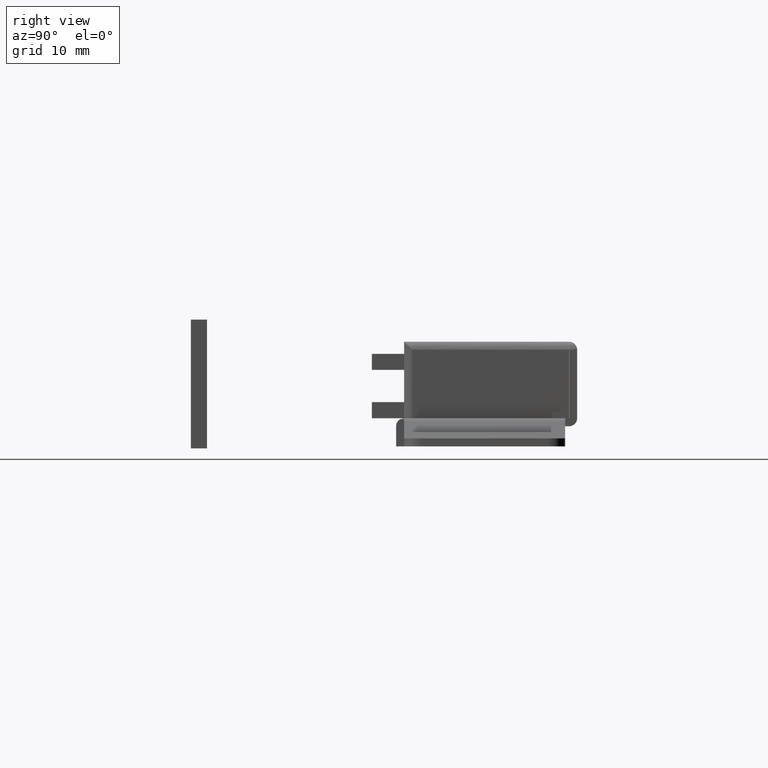
[diagram: clean part render]
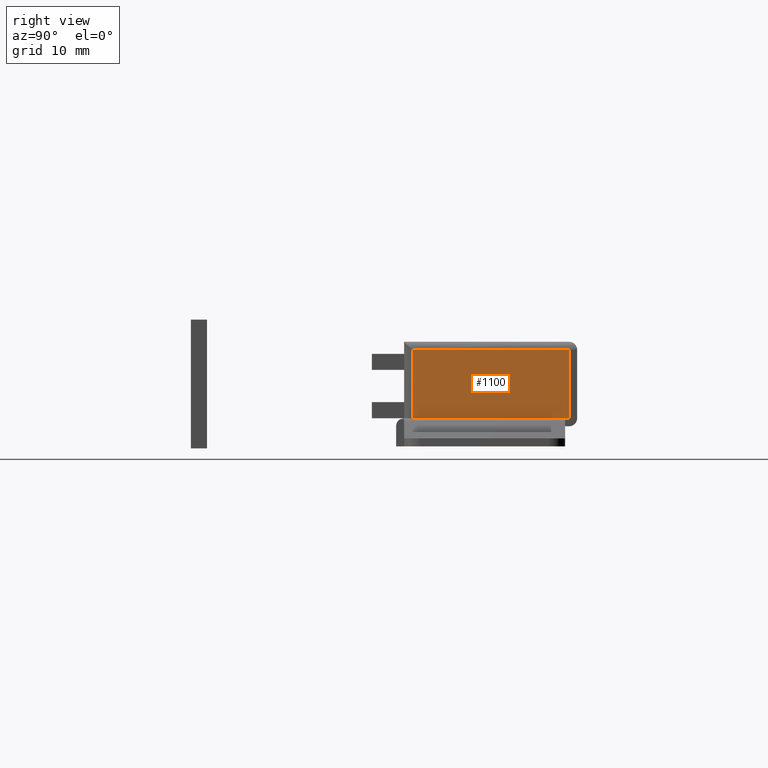
[diagram: same view with one face highlighted and labeled with its STEP entity id]
A machine part, right view. The second image highlights one B-rep face of the part: STEP entity #1100.
In plain terms, the highlighted face is a freeform B-spline surface patch.
Its self-contained STEP definition (entity closure, byte-faithful):
#370=CARTESIAN_POINT('',(26.750004000000001,-20.500000000000000,3.500000000000000));
#371=VERTEX_POINT('',#370);
#393=CARTESIAN_POINT('',(26.750005999999999,-1.500000000000000,3.500000000000000));
#394=VERTEX_POINT('',#393);
#400=CARTESIAN_POINT('',(26.750005999999999,-1.500000000000000,3.500000000000000));
#401=CARTESIAN_POINT('',(26.750004000000001,-20.500000000000000,3.500000000000000));
#402=QUASI_UNIFORM_CURVE('',1,(#400,#401),.UNSPECIFIED.,.F.,.U.);
#403=EDGE_CURVE('',#394,#371,#402,.T.);
#1066=CARTESIAN_POINT('',(26.750004000000001,-21.473525484019390,12.424566583925360));
#1067=CARTESIAN_POINT('',(26.750004000000001,-21.473525484019390,3.075425188087082));
#1068=CARTESIAN_POINT('',(26.750004000000001,-0.036473556885981,12.424566583925360));
#1069=CARTESIAN_POINT('',(26.750004000000001,-0.036473556885981,3.075425188087082));
#1070=B_SPLINE_SURFACE_WITH_KNOTS('',1,1,((#1066,#1068),(#1067,#1069)),.UNSPECIFIED.,.F.,.F.,.U.,(2,2),(2,2),(0.0,9.349141395838274),(0.0,21.437051927133410),.UNSPECIFIED.);
#1071=CARTESIAN_POINT('',(26.750003999999951,-1.009999999999590,11.999991999999990));
#1072=VERTEX_POINT('',#1071);
#1073=CARTESIAN_POINT('',(26.750004000000001,-20.500000000000000,11.999984000000000));
#1074=VERTEX_POINT('',#1073);
#1075=CARTESIAN_POINT('',(26.750003999999951,-1.009999999999590,11.999991999999990));
#1076=CARTESIAN_POINT('',(26.750004000000001,-20.500000000000000,11.999984000000000));
#1077=QUASI_UNIFORM_CURVE('',1,(#1075,#1076),.UNSPECIFIED.,.F.,.U.);
#1078=EDGE_CURVE('',#1072,#1074,#1077,.T.);
#1079=ORIENTED_EDGE('',*,*,#1078,.T.);
#1080=CARTESIAN_POINT('',(26.750004000000001,-20.500000000000000,11.999984000000000));
#1081=CARTESIAN_POINT('',(26.750004000000001,-20.500000000000000,3.500000000000000));
#1082=QUASI_UNIFORM_CURVE('',1,(#1080,#1081),.UNSPECIFIED.,.F.,.U.);
#1083=EDGE_CURVE('',#1074,#371,#1082,.T.);
#1084=ORIENTED_EDGE('',*,*,#1083,.T.);
#1085=ORIENTED_EDGE('',*,*,#403,.F.);
#1086=CARTESIAN_POINT('',(26.750003999999951,-1.009999563667914,3.500000000000085));
#1087=VERTEX_POINT('',#1086);
#1088=CARTESIAN_POINT('',(26.750005999999999,-1.500000000000000,3.500000000000000));
#1089=CARTESIAN_POINT('',(26.750003999999951,-1.009999563667914,3.500000000000085));
#1090=QUASI_UNIFORM_CURVE('',1,(#1088,#1089),.UNSPECIFIED.,.F.,.U.);
#1091=EDGE_CURVE('',#394,#1087,#1090,.T.);
#1092=ORIENTED_EDGE('',*,*,#1091,.T.);
#1093=CARTESIAN_POINT('',(26.750003999999951,-1.009999999999590,11.999991999999990));
#1094=CARTESIAN_POINT('',(26.750003999999951,-1.009999563667914,3.500000000000085));
#1095=QUASI_UNIFORM_CURVE('',1,(#1093,#1094),.UNSPECIFIED.,.F.,.U.);
#1096=EDGE_CURVE('',#1072,#1087,#1095,.T.);
#1097=ORIENTED_EDGE('',*,*,#1096,.F.);
#1098=EDGE_LOOP('',(#1079,#1084,#1085,#1092,#1097));
#1099=FACE_OUTER_BOUND('',#1098,.T.);
#1100=ADVANCED_FACE('',(#1099),#1070,.T.);